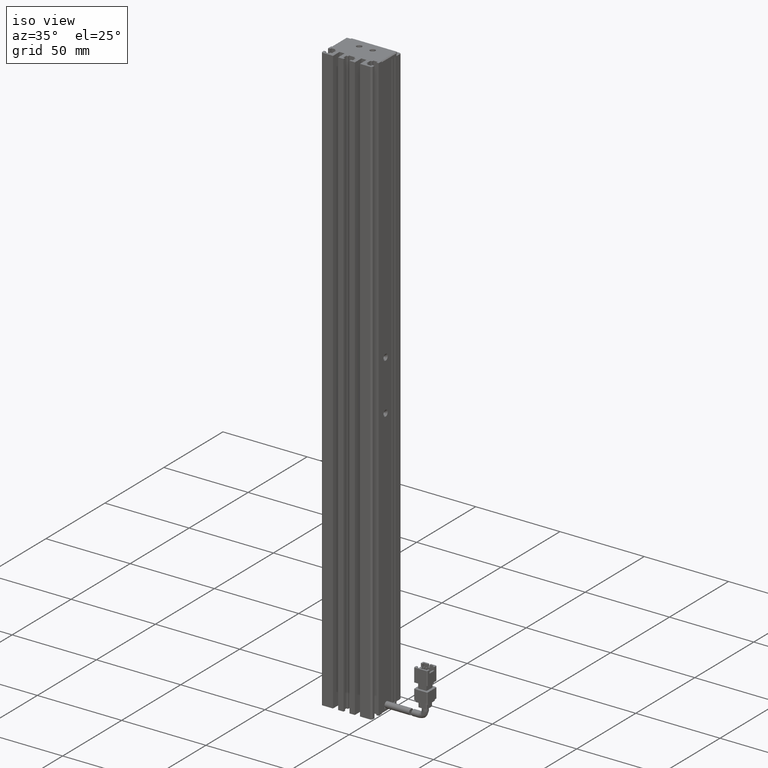
[diagram: clean part render]
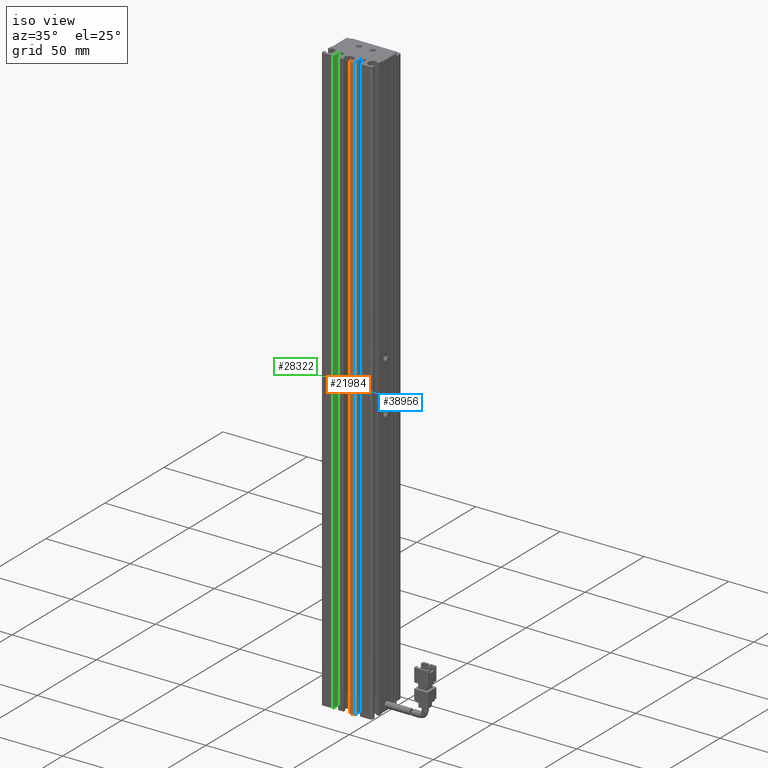
[diagram: same view with three faces highlighted in distinct colors, each labeled with its STEP entity id]
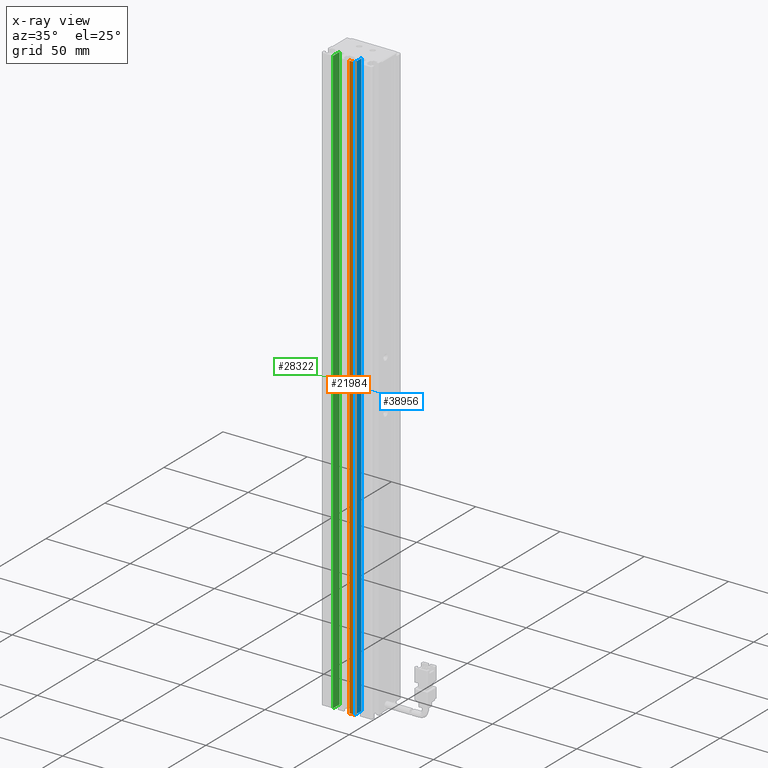
[diagram: x-ray of the same camera — body ghosted, the three highlighted faces saturated]
A machine part, iso view with three faces highlighted in distinct colors.
The next image is the same camera in x-ray (body ghosted, the three faces saturated) — at least one of them is partly hidden behind the body in this view.
Their STEP definitions:

[orange] entity #21984 — the highlighted planar face has unit normal (0, 1, 0).
#401 = VERTEX_POINT ( 'NONE', #10953 ) ;
#2629 = PLANE ( 'NONE',  #49090 ) ;
#4223 = CARTESIAN_POINT ( 'NONE',  ( 45.92537974683541800, 10.69594479660386800, 60.00000000000001400 ) ) ;
#4659 = CARTESIAN_POINT ( 'NONE',  ( 42.67537974683542500, 10.69594479660386800, 60.00000000000001400 ) ) ;
#7241 = ORIENTED_EDGE ( 'NONE', *, *, #14668, .F. ) ;
#7748 = VERTEX_POINT ( 'NONE', #64687 ) ;
#7880 = ORIENTED_EDGE ( 'NONE', *, *, #45685, .T. ) ;
#8483 = VECTOR ( 'NONE', #44625, 1000.000000000000000 ) ;
#10953 = CARTESIAN_POINT ( 'NONE',  ( 45.92537974683541800, 10.69594479660386800, -290.0000000000000600 ) ) ;
#11321 = EDGE_CURVE ( 'NONE', #401, #66170, #22171, .T. ) ;
#11629 = DIRECTION ( 'NONE',  ( 0.0000000000000000000, -0.0000000000000000000, 1.000000000000000000 ) ) ;
#11763 = VERTEX_POINT ( 'NONE', #4659 ) ;
#13090 = FACE_OUTER_BOUND ( 'NONE', #65109, .T. ) ;
#14668 = EDGE_CURVE ( 'NONE', #7748, #11763, #52338, .T. ) ;
#21984 = ADVANCED_FACE ( 'NONE', ( #13090 ), #2629, .F. ) ;
#22171 = LINE ( 'NONE', #37303, #62109 ) ;
#22351 = LINE ( 'NONE', #44155, #8483 ) ;
#23051 = VECTOR ( 'NONE', #11629, 1000.000000000000000 ) ;
#23613 = CARTESIAN_POINT ( 'NONE',  ( 40.92537974683542500, 10.69594479660386800, 60.00000000000001400 ) ) ;
#26732 = CARTESIAN_POINT ( 'NONE',  ( 40.92537974683542500, 10.69594479660386800, 60.00000000000001400 ) ) ;
#28838 = DIRECTION ( 'NONE',  ( 0.0000000000000000000, -0.0000000000000000000, 1.000000000000000000 ) ) ;
#34216 = EDGE_CURVE ( 'NONE', #11763, #66170, #59586, .T. ) ;
#37303 = CARTESIAN_POINT ( 'NONE',  ( 45.92537974683541800, 10.69594479660386800, 60.00000000000001400 ) ) ;
#42491 = DIRECTION ( 'NONE',  ( 0.0000000000000000000, 0.0000000000000000000, 1.000000000000000000 ) ) ;
#44155 = CARTESIAN_POINT ( 'NONE',  ( 40.92537974683542500, 10.69594479660386800, -290.0000000000000600 ) ) ;
#44625 = DIRECTION ( 'NONE',  ( 1.000000000000000000, 0.0000000000000000000, 0.0000000000000000000 ) ) ;
#45685 = EDGE_CURVE ( 'NONE', #7748, #401, #22351, .T. ) ;
#49090 = AXIS2_PLACEMENT_3D ( 'NONE', #23613, #60029, #28838 ) ;
#51582 = ORIENTED_EDGE ( 'NONE', *, *, #34216, .F. ) ;
#52338 = LINE ( 'NONE', #58542, #23051 ) ;
#52670 = DIRECTION ( 'NONE',  ( 1.000000000000000000, 0.0000000000000000000, 0.0000000000000000000 ) ) ;
#57912 = VECTOR ( 'NONE', #52670, 1000.000000000000000 ) ;
#58542 = CARTESIAN_POINT ( 'NONE',  ( 42.67537974683542500, 10.69594479660386800, 60.00000000000001400 ) ) ;
#59586 = LINE ( 'NONE', #26732, #57912 ) ;
#60000 = ORIENTED_EDGE ( 'NONE', *, *, #11321, .T. ) ;
#60029 = DIRECTION ( 'NONE',  ( 0.0000000000000000000, 1.000000000000000000, 0.0000000000000000000 ) ) ;
#62109 = VECTOR ( 'NONE', #42491, 1000.000000000000000 ) ;
#64687 = CARTESIAN_POINT ( 'NONE',  ( 42.67537974683542500, 10.69594479660386800, -290.0000000000000600 ) ) ;
#65109 = EDGE_LOOP ( 'NONE', ( #60000, #51582, #7241, #7880 ) ) ;
#66170 = VERTEX_POINT ( 'NONE', #4223 ) ;

[blue] entity #38956 — the highlighted planar face has unit normal (-1, -0, 0).
#401 = VERTEX_POINT ( 'NONE', #10953 ) ;
#1318 = ORIENTED_EDGE ( 'NONE', *, *, #11321, .F. ) ;
#1366 = CARTESIAN_POINT ( 'NONE',  ( 45.92537974683541800, 16.19594479660386800, 60.00000000000001400 ) ) ;
#2340 = DIRECTION ( 'NONE',  ( 0.0000000000000000000, -0.0000000000000000000, -1.000000000000000000 ) ) ;
#4223 = CARTESIAN_POINT ( 'NONE',  ( 45.92537974683541800, 10.69594479660386800, 60.00000000000001400 ) ) ;
#5339 = DIRECTION ( 'NONE',  ( -1.000000000000000000, -3.154042683594196600E-016, 0.0000000000000000000 ) ) ;
#8787 = CARTESIAN_POINT ( 'NONE',  ( 45.92537974683541800, 7.083797468354437600, 60.00000000000001400 ) ) ;
#10953 = CARTESIAN_POINT ( 'NONE',  ( 45.92537974683541800, 10.69594479660386800, -290.0000000000000600 ) ) ;
#11321 = EDGE_CURVE ( 'NONE', #401, #66170, #22171, .T. ) ;
#13912 = ORIENTED_EDGE ( 'NONE', *, *, #50250, .T. ) ;
#15285 = LINE ( 'NONE', #33051, #55237 ) ;
#19000 = CARTESIAN_POINT ( 'NONE',  ( 45.92537974683541800, 16.19594479660386800, -290.0000000000000600 ) ) ;
#21028 = EDGE_LOOP ( 'NONE', ( #39787, #25013, #1318, #13912 ) ) ;
#22171 = LINE ( 'NONE', #37303, #62109 ) ;
#25013 = ORIENTED_EDGE ( 'NONE', *, *, #60421, .F. ) ;
#25732 = VECTOR ( 'NONE', #50489, 1000.000000000000000 ) ;
#32292 = VERTEX_POINT ( 'NONE', #19000 ) ;
#33051 = CARTESIAN_POINT ( 'NONE',  ( 45.92537974683541800, 7.083797468354437600, -290.0000000000000600 ) ) ;
#33523 = CARTESIAN_POINT ( 'NONE',  ( 45.92537974683541800, 16.19594479660386800, 60.00000000000001400 ) ) ;
#36579 = CARTESIAN_POINT ( 'NONE',  ( 45.92537974683541800, 7.083797468354439400, 60.00000000000001400 ) ) ;
#37247 = VECTOR ( 'NONE', #2340, 1000.000000000000000 ) ;
#37303 = CARTESIAN_POINT ( 'NONE',  ( 45.92537974683541800, 10.69594479660386800, 60.00000000000001400 ) ) ;
#38536 = DIRECTION ( 'NONE',  ( 0.0000000000000000000, 1.000000000000000000, -0.0000000000000000000 ) ) ;
#38956 = ADVANCED_FACE ( 'NONE', ( #46234 ), #41584, .F. ) ;
#39563 = LINE ( 'NONE', #8787, #25732 ) ;
#39787 = ORIENTED_EDGE ( 'NONE', *, *, #55939, .F. ) ;
#41584 = PLANE ( 'NONE',  #54220 ) ;
#41803 = DIRECTION ( 'NONE',  ( 3.154042683594196600E-016, -1.000000000000000000, 0.0000000000000000000 ) ) ;
#42491 = DIRECTION ( 'NONE',  ( 0.0000000000000000000, 0.0000000000000000000, 1.000000000000000000 ) ) ;
#46234 = FACE_OUTER_BOUND ( 'NONE', #21028, .T. ) ;
#50250 = EDGE_CURVE ( 'NONE', #401, #32292, #15285, .T. ) ;
#50489 = DIRECTION ( 'NONE',  ( 0.0000000000000000000, 1.000000000000000000, -0.0000000000000000000 ) ) ;
#51105 = LINE ( 'NONE', #33523, #37247 ) ;
#52879 = VERTEX_POINT ( 'NONE', #1366 ) ;
#54220 = AXIS2_PLACEMENT_3D ( 'NONE', #36579, #5339, #41803 ) ;
#55237 = VECTOR ( 'NONE', #38536, 1000.000000000000000 ) ;
#55939 = EDGE_CURVE ( 'NONE', #52879, #32292, #51105, .T. ) ;
#60421 = EDGE_CURVE ( 'NONE', #66170, #52879, #39563, .T. ) ;
#62109 = VECTOR ( 'NONE', #42491, 1000.000000000000000 ) ;
#66170 = VERTEX_POINT ( 'NONE', #4223 ) ;

[green] entity #28322 — the highlighted planar face has unit normal (-1, 0, 0).
#720 = VERTEX_POINT ( 'NONE', #7206 ) ;
#2170 = LINE ( 'NONE', #43725, #29887 ) ;
#6900 = ORIENTED_EDGE ( 'NONE', *, *, #21810, .T. ) ;
#7206 = CARTESIAN_POINT ( 'NONE',  ( 32.92537974683543200, 10.69594479660386800, -290.0000000000000600 ) ) ;
#8064 = EDGE_CURVE ( 'NONE', #720, #41648, #49130, .T. ) ;
#9663 = CARTESIAN_POINT ( 'NONE',  ( 32.92537974683543200, 16.19594479660386500, -290.0000000000000600 ) ) ;
#10032 = ORIENTED_EDGE ( 'NONE', *, *, #29784, .F. ) ;
#12563 = DIRECTION ( 'NONE',  ( 0.0000000000000000000, 1.000000000000000000, -0.0000000000000000000 ) ) ;
#14775 = VECTOR ( 'NONE', #55142, 1000.000000000000000 ) ;
#15503 = LINE ( 'NONE', #22412, #43213 ) ;
#18869 = ORIENTED_EDGE ( 'NONE', *, *, #34271, .T. ) ;
#21810 = EDGE_CURVE ( 'NONE', #64466, #48397, #54696, .T. ) ;
#22412 = CARTESIAN_POINT ( 'NONE',  ( 32.92537974683543200, 7.083797468354437600, -290.0000000000000600 ) ) ;
#22417 = CARTESIAN_POINT ( 'NONE',  ( 32.92537974683543200, 16.19594479660386500, 60.00000000000001400 ) ) ;
#23821 = DIRECTION ( 'NONE',  ( -1.000000000000000000, 0.0000000000000000000, 0.0000000000000000000 ) ) ;
#24201 = CARTESIAN_POINT ( 'NONE',  ( 32.92537974683543200, 16.19594479660386500, 60.00000000000001400 ) ) ;
#28322 = ADVANCED_FACE ( 'NONE', ( #55130 ), #34017, .F. ) ;
#29784 = EDGE_CURVE ( 'NONE', #41648, #48397, #2170, .T. ) ;
#29887 = VECTOR ( 'NONE', #12563, 1000.000000000000000 ) ;
#31340 = CARTESIAN_POINT ( 'NONE',  ( 32.92537974683543200, 10.69594479660386800, 60.00000000000001400 ) ) ;
#34017 = PLANE ( 'NONE',  #66058 ) ;
#34271 = EDGE_CURVE ( 'NONE', #720, #64466, #15503, .T. ) ;
#38622 = ORIENTED_EDGE ( 'NONE', *, *, #8064, .F. ) ;
#39608 = CARTESIAN_POINT ( 'NONE',  ( 32.92537974683543200, 10.69594479660386800, 60.00000000000001400 ) ) ;
#41648 = VERTEX_POINT ( 'NONE', #39608 ) ;
#43213 = VECTOR ( 'NONE', #58817, 1000.000000000000000 ) ;
#43725 = CARTESIAN_POINT ( 'NONE',  ( 32.92537974683543200, 7.083797468354437600, 60.00000000000001400 ) ) ;
#45839 = VECTOR ( 'NONE', #47050, 1000.000000000000000 ) ;
#47050 = DIRECTION ( 'NONE',  ( 0.0000000000000000000, 0.0000000000000000000, 1.000000000000000000 ) ) ;
#48397 = VERTEX_POINT ( 'NONE', #22417 ) ;
#49130 = LINE ( 'NONE', #31340, #45839 ) ;
#54696 = LINE ( 'NONE', #24201, #14775 ) ;
#54973 = CARTESIAN_POINT ( 'NONE',  ( 32.92537974683543200, 7.083797468354437600, 60.00000000000001400 ) ) ;
#55130 = FACE_OUTER_BOUND ( 'NONE', #67253, .T. ) ;
#55142 = DIRECTION ( 'NONE',  ( 0.0000000000000000000, -0.0000000000000000000, 1.000000000000000000 ) ) ;
#58817 = DIRECTION ( 'NONE',  ( 0.0000000000000000000, 1.000000000000000000, -0.0000000000000000000 ) ) ;
#60223 = DIRECTION ( 'NONE',  ( 0.0000000000000000000, 0.0000000000000000000, 1.000000000000000000 ) ) ;
#64466 = VERTEX_POINT ( 'NONE', #9663 ) ;
#66058 = AXIS2_PLACEMENT_3D ( 'NONE', #54973, #23821, #60223 ) ;
#67253 = EDGE_LOOP ( 'NONE', ( #6900, #10032, #38622, #18869 ) ) ;